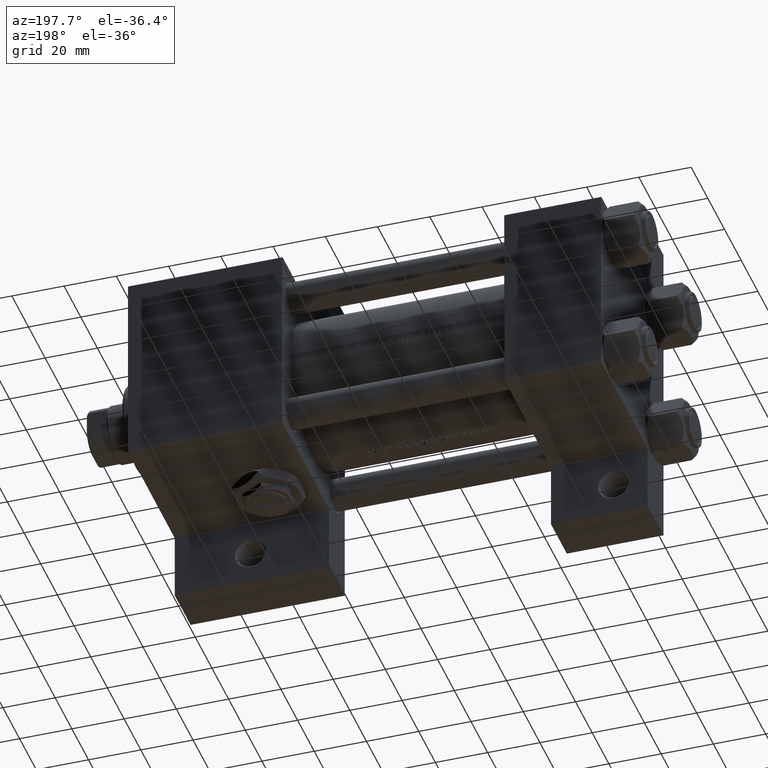
[diagram: clean part render]
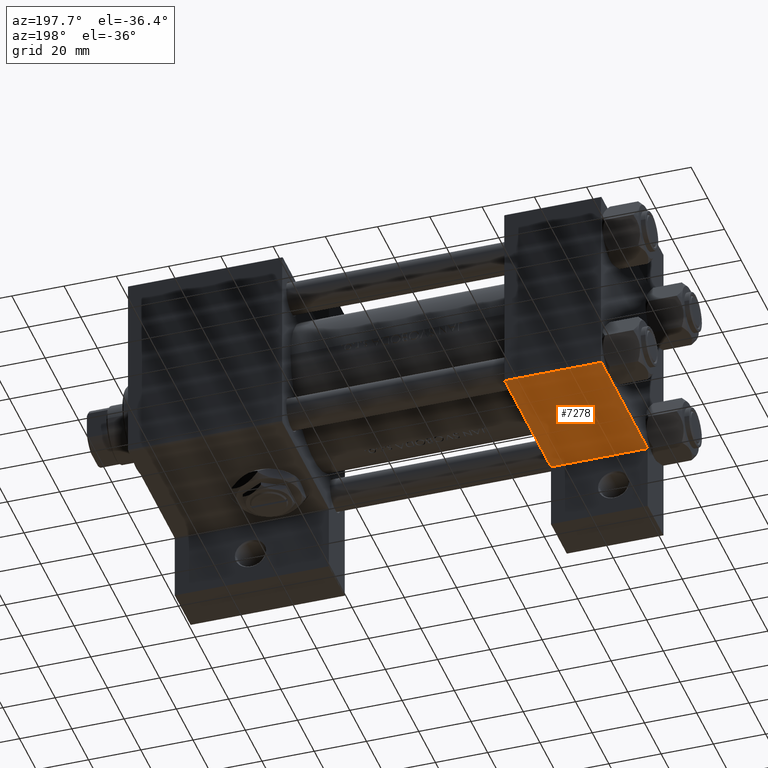
[diagram: same view with one face highlighted and labeled with its STEP entity id]
A machine part, auxiliary view. The second image highlights one B-rep face of the part: STEP entity #7278.
In plain terms, the highlighted planar face has unit normal (0, 0, -1).
Its self-contained STEP definition (entity closure, byte-faithful):
#1613 = LINE ( 'NONE', #20534, #25098 ) ;
#3107 = VECTOR ( 'NONE', #6642, 1000.000000000000000 ) ;
#3119 = LINE ( 'NONE', #18308, #7696 ) ;
#3950 = CARTESIAN_POINT ( 'NONE',  ( 37.00000000000000711, 37.50000000000000711, -18.50000000000000355 ) ) ;
#5875 = VERTEX_POINT ( 'NONE', #29822 ) ;
#6642 = DIRECTION ( 'NONE',  ( 0.000000000000000000, 0.000000000000000000, -1.000000000000000000 ) ) ;
#7278 = ADVANCED_FACE ( 'NONE', ( #38550 ), #30842, .T. ) ;
#7696 = VECTOR ( 'NONE', #11317, 1000.000000000000000 ) ;
#8588 = ORIENTED_EDGE ( 'NONE', *, *, #28671, .F. ) ;
#11317 = DIRECTION ( 'NONE',  ( 0.000000000000000000, 0.000000000000000000, -1.000000000000000000 ) ) ;
#12049 = CARTESIAN_POINT ( 'NONE',  ( 37.00000000000000000, 37.49999999999999289, 37.00000000000000000 ) ) ;
#15892 = CARTESIAN_POINT ( 'NONE',  ( 37.00000000000000000, 37.49999999999999289, 37.50000000000000000 ) ) ;
#18308 = CARTESIAN_POINT ( 'NONE',  ( 37.00000000000000000, 37.49999999999999289, 37.50000000000000000 ) ) ;
#18928 = EDGE_LOOP ( 'NONE', ( #39659, #8588, #29991, #37900 ) ) ;
#20519 = EDGE_CURVE ( 'NONE', #5875, #47525, #1613, .T. ) ;
#20534 = CARTESIAN_POINT ( 'NONE',  ( 8.470280871287256020E-15, 37.50000000000002842, -18.49999999999999645 ) ) ;
#21596 = CARTESIAN_POINT ( 'NONE',  ( 37.00000000000000000, 37.49999999999999289, 37.00000000000000000 ) ) ;
#22867 = EDGE_CURVE ( 'NONE', #36929, #47525, #3119, .T. ) ;
#25098 = VECTOR ( 'NONE', #36462, 1000.000000000000000 ) ;
#26292 = CARTESIAN_POINT ( 'NONE',  ( 0.000000000000000000, 37.49999999999999289, 37.00000000000000000 ) ) ;
#28354 = LINE ( 'NONE', #21596, #45170 ) ;
#28671 = EDGE_CURVE ( 'NONE', #31546, #5875, #44509, .T. ) ;
#29822 = CARTESIAN_POINT ( 'NONE',  ( 0.000000000000000000, 37.49999999999999289, -18.49999999999999645 ) ) ;
#29991 = ORIENTED_EDGE ( 'NONE', *, *, #48516, .T. ) ;
#30842 = PLANE ( 'NONE',  #34322 ) ;
#31546 = VERTEX_POINT ( 'NONE', #26292 ) ;
#34322 = AXIS2_PLACEMENT_3D ( 'NONE', #15892, #46278, #42047 ) ;
#36462 = DIRECTION ( 'NONE',  ( 1.000000000000000000, -3.750753461571474945E-16, 0.000000000000000000 ) ) ;
#36929 = VERTEX_POINT ( 'NONE', #12049 ) ;
#37900 = ORIENTED_EDGE ( 'NONE', *, *, #22867, .T. ) ;
#38550 = FACE_OUTER_BOUND ( 'NONE', #18928, .T. ) ;
#39659 = ORIENTED_EDGE ( 'NONE', *, *, #20519, .F. ) ;
#40753 = CARTESIAN_POINT ( 'NONE',  ( 0.000000000000000000, 37.49999999999999289, 37.50000000000000000 ) ) ;
#42047 = DIRECTION ( 'NONE',  ( 0.000000000000000000, -0.000000000000000000, 1.000000000000000000 ) ) ;
#43543 = DIRECTION ( 'NONE',  ( 1.000000000000000000, 0.000000000000000000, 0.000000000000000000 ) ) ;
#44509 = LINE ( 'NONE', #40753, #3107 ) ;
#45170 = VECTOR ( 'NONE', #43543, 1000.000000000000000 ) ;
#46278 = DIRECTION ( 'NONE',  ( -0.000000000000000000, 1.000000000000000000, 0.000000000000000000 ) ) ;
#47525 = VERTEX_POINT ( 'NONE', #3950 ) ;
#48516 = EDGE_CURVE ( 'NONE', #31546, #36929, #28354, .T. ) ;